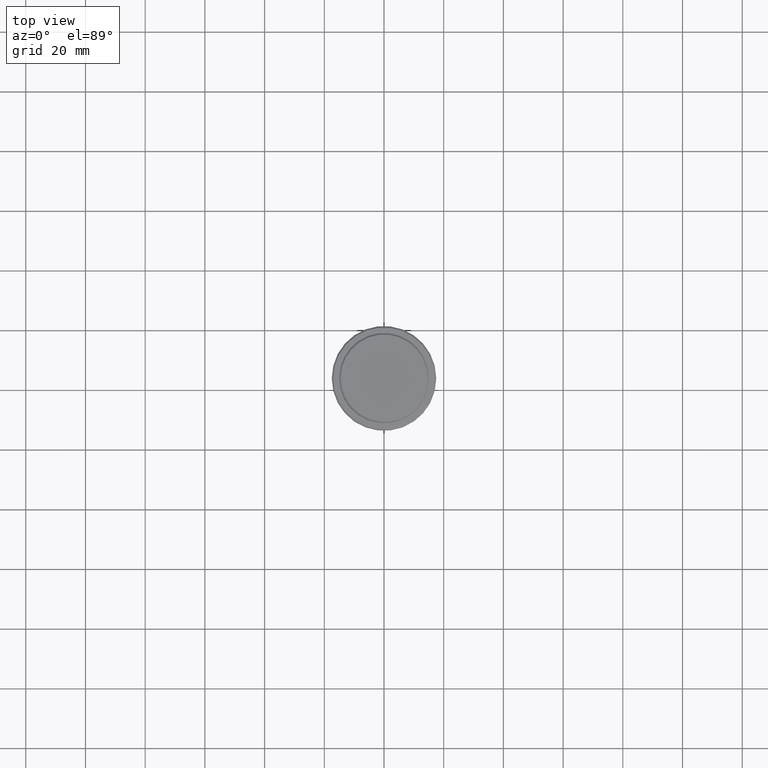
[diagram: clean part render]
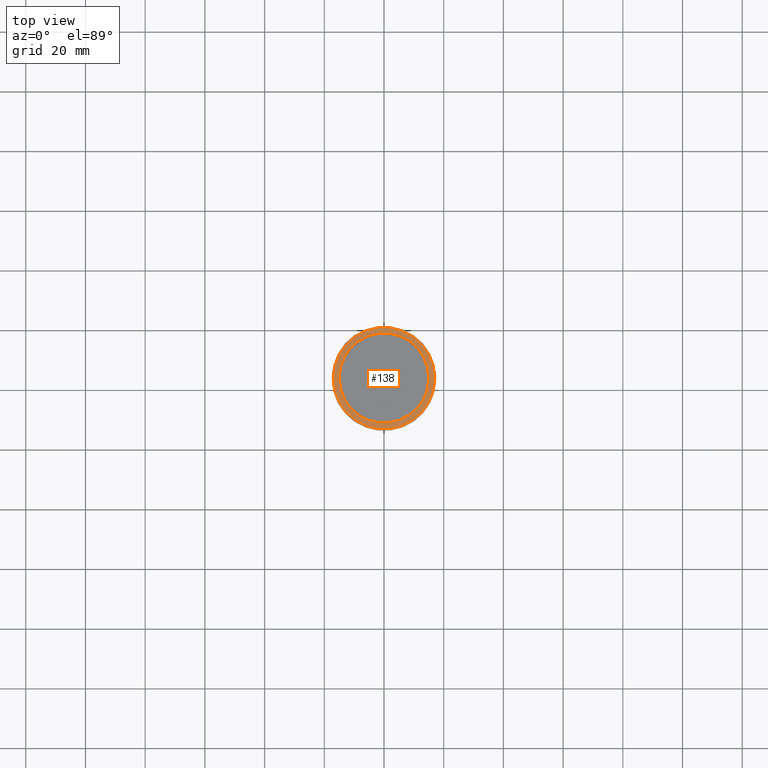
[diagram: same view with one face highlighted and labeled with its STEP entity id]
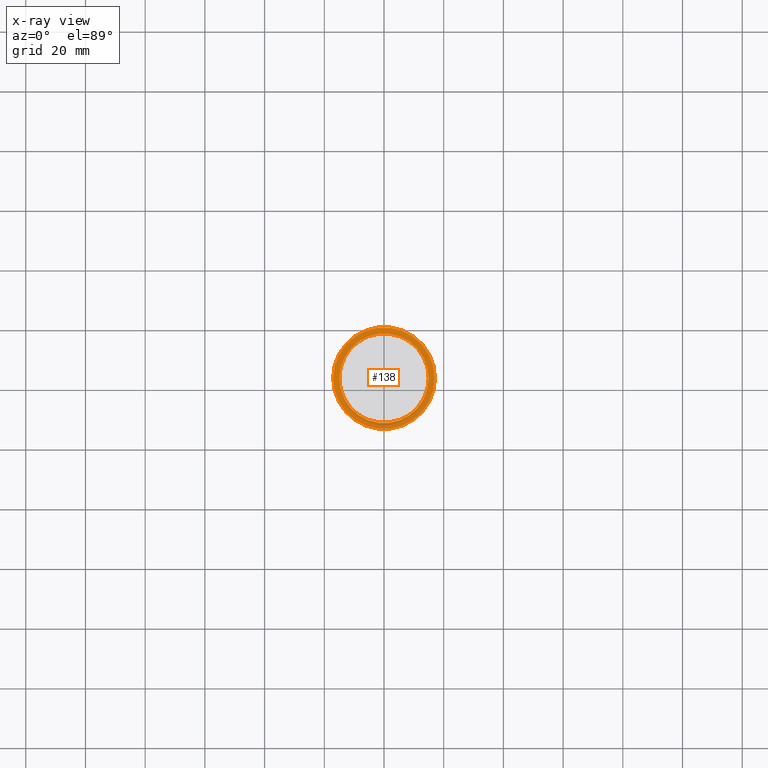
[diagram: x-ray of the same camera — body ghosted, the highlighted face saturated]
A machine part, top view. The second image highlights one B-rep face of the part: STEP entity #138.
The next image is the same camera in x-ray: the body ghosted, the highlighted face saturated — about 0% of this face is hidden behind the body in this view.
In plain terms, the highlighted planar face has unit normal (0, -0, 1).
Its self-contained STEP definition (entity closure, byte-faithful):
#138 = ADVANCED_FACE ( 'NONE', ( #974, #1396 ), #641, .T. ) ;
#164 = DIRECTION ( 'NONE',  ( 1.000000000000000000, 0.000000000000000000, 0.000000000000000000 ) ) ;
#209 = CIRCLE ( 'NONE', #300, 14.99999999999999467 ) ;
#269 = DIRECTION ( 'NONE',  ( 1.000000000000000000, 0.000000000000000000, 0.000000000000000000 ) ) ;
#300 = AXIS2_PLACEMENT_3D ( 'NONE', #809, #503, #377 ) ;
#377 = DIRECTION ( 'NONE',  ( 1.000000000000000000, 0.000000000000000000, 0.000000000000000000 ) ) ;
#387 = DIRECTION ( 'NONE',  ( -0.000000000000000000, -0.000000000000000000, 1.000000000000000000 ) ) ;
#411 = DIRECTION ( 'NONE',  ( 1.000000000000000000, 0.000000000000000000, 0.000000000000000000 ) ) ;
#503 = DIRECTION ( 'NONE',  ( 0.000000000000000000, 0.000000000000000000, -1.000000000000000000 ) ) ;
#511 = AXIS2_PLACEMENT_3D ( 'NONE', #1308, #1215, #670 ) ;
#530 = AXIS2_PLACEMENT_3D ( 'NONE', #818, #1256, #269 ) ;
#540 = CARTESIAN_POINT ( 'NONE',  ( 17.00000000000004263, 2.112515728529187222E-15, -9.000000000000001776 ) ) ;
#569 = VERTEX_POINT ( 'NONE', #540 ) ;
#587 = ORIENTED_EDGE ( 'NONE', *, *, #1155, .T. ) ;
#612 = VERTEX_POINT ( 'NONE', #990 ) ;
#641 = PLANE ( 'NONE',  #690 ) ;
#670 = DIRECTION ( 'NONE',  ( 1.000000000000000000, 0.000000000000000000, 0.000000000000000000 ) ) ;
#690 = AXIS2_PLACEMENT_3D ( 'NONE', #737, #1283, #411 ) ;
#737 = CARTESIAN_POINT ( 'NONE',  ( 0.000000000000000000, 14.49999999999999467, -9.000000000000001776 ) ) ;
#742 = EDGE_CURVE ( 'NONE', #886, #1183, #209, .T. ) ;
#809 = CARTESIAN_POINT ( 'NONE',  ( 0.000000000000000000, 0.000000000000000000, -9.000000000000001776 ) ) ;
#818 = CARTESIAN_POINT ( 'NONE',  ( 0.000000000000000000, 0.000000000000000000, -9.000000000000001776 ) ) ;
#854 = EDGE_CURVE ( 'NONE', #612, #569, #961, .T. ) ;
#884 = EDGE_LOOP ( 'NONE', ( #587, #1236 ) ) ;
#886 = VERTEX_POINT ( 'NONE', #1275 ) ;
#961 = CIRCLE ( 'NONE', #530, 17.00000000000004263 ) ;
#974 = FACE_OUTER_BOUND ( 'NONE', #976, .T. ) ;
#976 = EDGE_LOOP ( 'NONE', ( #1305, #1197 ) ) ;
#990 = CARTESIAN_POINT ( 'NONE',  ( -17.00000000000004263, 0.000000000000000000, -9.000000000000001776 ) ) ;
#1151 = CIRCLE ( 'NONE', #511, 14.99999999999999467 ) ;
#1153 = CIRCLE ( 'NONE', #1315, 17.00000000000004263 ) ;
#1155 = EDGE_CURVE ( 'NONE', #1183, #886, #1151, .T. ) ;
#1183 = VERTEX_POINT ( 'NONE', #1200 ) ;
#1197 = ORIENTED_EDGE ( 'NONE', *, *, #1279, .T. ) ;
#1200 = CARTESIAN_POINT ( 'NONE',  ( 14.99999999999999467, 0.000000000000000000, -9.000000000000001776 ) ) ;
#1215 = DIRECTION ( 'NONE',  ( 0.000000000000000000, 0.000000000000000000, -1.000000000000000000 ) ) ;
#1236 = ORIENTED_EDGE ( 'NONE', *, *, #742, .T. ) ;
#1256 = DIRECTION ( 'NONE',  ( -0.000000000000000000, -0.000000000000000000, 1.000000000000000000 ) ) ;
#1258 = CARTESIAN_POINT ( 'NONE',  ( 0.000000000000000000, 0.000000000000000000, -9.000000000000001776 ) ) ;
#1275 = CARTESIAN_POINT ( 'NONE',  ( -14.99999999999999467, 1.836970198721029194E-15, -9.000000000000001776 ) ) ;
#1279 = EDGE_CURVE ( 'NONE', #569, #612, #1153, .T. ) ;
#1283 = DIRECTION ( 'NONE',  ( 0.000000000000000000, -0.000000000000000000, 1.000000000000000000 ) ) ;
#1305 = ORIENTED_EDGE ( 'NONE', *, *, #854, .T. ) ;
#1308 = CARTESIAN_POINT ( 'NONE',  ( 0.000000000000000000, 0.000000000000000000, -9.000000000000001776 ) ) ;
#1315 = AXIS2_PLACEMENT_3D ( 'NONE', #1258, #387, #164 ) ;
#1396 = FACE_BOUND ( 'NONE', #884, .T. ) ;